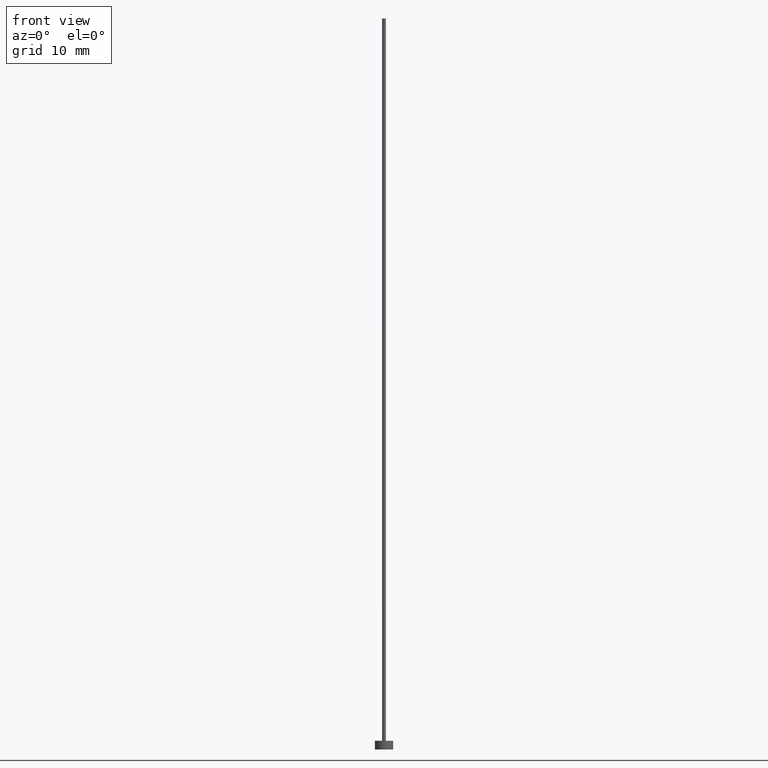
[diagram: clean part render]
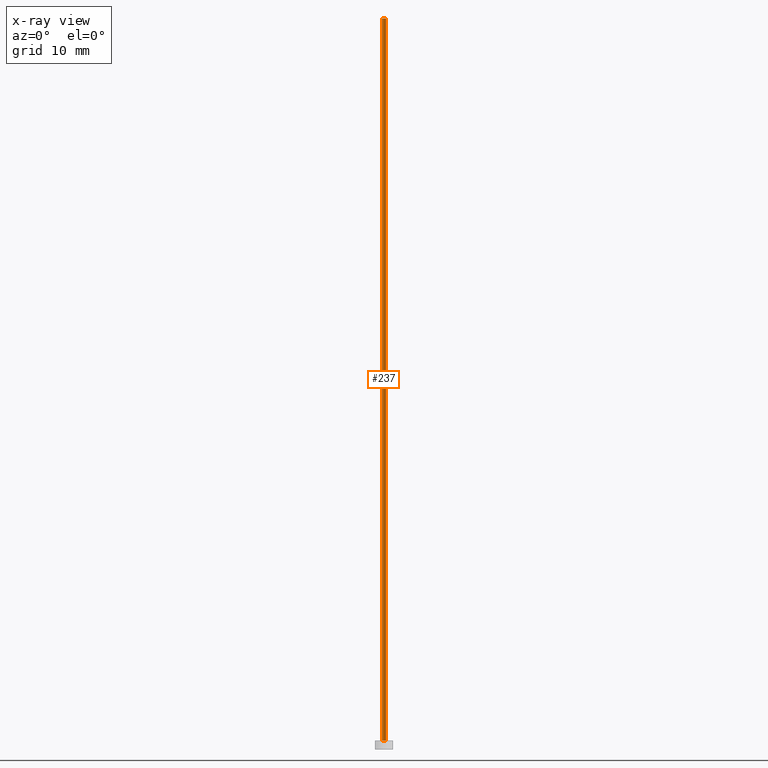
[diagram: x-ray — body ghosted, one internal face saturated and labeled with its STEP entity id]
A machine part, front view, then the same camera in x-ray: the body is ghosted and one INTERNAL B-rep face — a face not visible from any outside direction — is saturated and labeled: STEP entity #237.
In plain terms, the highlighted cylindrical surface (edge-blend (fillet) strip) has radius 0.25 mm, axis along (-0, -0, -1).
Its self-contained STEP definition (entity closure, byte-faithful):
#10 = EDGE_CURVE ( 'NONE', #40, #145, #216, .T. ) ;
#15 = DIRECTION ( 'NONE',  ( -0.000000000000000000, -0.000000000000000000, -1.000000000000000000 ) ) ;
#21 = CARTESIAN_POINT ( 'NONE',  ( 0.000000000000000000, 0.000000000000000000, 100.0000000000000000 ) ) ;
#24 = CIRCLE ( 'NONE', #86, 0.2500000000000000000 ) ;
#33 = VERTEX_POINT ( 'NONE', #68 ) ;
#36 = VERTEX_POINT ( 'NONE', #73 ) ;
#40 = VERTEX_POINT ( 'NONE', #125 ) ;
#41 = FACE_OUTER_BOUND ( 'NONE', #128, .T. ) ;
#47 = CARTESIAN_POINT ( 'NONE',  ( -0.2500000000000000000, 0.000000000000000000, 100.0000000000000000 ) ) ;
#52 = EDGE_CURVE ( 'NONE', #36, #33, #211, .T. ) ;
#68 = CARTESIAN_POINT ( 'NONE',  ( 0.2500000000000000000, 3.061616997868383018E-17, 1.199999999999999956 ) ) ;
#69 = ORIENTED_EDGE ( 'NONE', *, *, #168, .T. ) ;
#73 = CARTESIAN_POINT ( 'NONE',  ( 0.2500000000000000000, 3.061616997868383018E-17, 100.0000000000000000 ) ) ;
#74 = CARTESIAN_POINT ( 'NONE',  ( -0.2500000000000000000, 0.000000000000000000, 1.199999999999999956 ) ) ;
#86 = AXIS2_PLACEMENT_3D ( 'NONE', #21, #208, #189 ) ;
#94 = CIRCLE ( 'NONE', #219, 0.2500000000000000000 ) ;
#110 = ORIENTED_EDGE ( 'NONE', *, *, #172, .F. ) ;
#123 = VECTOR ( 'NONE', #224, 1000.000000000000000 ) ;
#125 = CARTESIAN_POINT ( 'NONE',  ( -0.2500000000000000000, 0.000000000000000000, 100.0000000000000000 ) ) ;
#128 = EDGE_LOOP ( 'NONE', ( #110, #129, #69, #250 ) ) ;
#129 = ORIENTED_EDGE ( 'NONE', *, *, #52, .T. ) ;
#145 = VERTEX_POINT ( 'NONE', #74 ) ;
#151 = DIRECTION ( 'NONE',  ( 1.000000000000000000, 0.000000000000000000, 0.000000000000000000 ) ) ;
#152 = CARTESIAN_POINT ( 'NONE',  ( 0.000000000000000000, 0.000000000000000000, 1.199999999999999956 ) ) ;
#156 = AXIS2_PLACEMENT_3D ( 'NONE', #212, #243, #196 ) ;
#168 = EDGE_CURVE ( 'NONE', #33, #145, #94, .T. ) ;
#172 = EDGE_CURVE ( 'NONE', #36, #40, #24, .T. ) ;
#177 = VECTOR ( 'NONE', #15, 1000.000000000000000 ) ;
#185 = CYLINDRICAL_SURFACE ( 'NONE', #156, 0.2500000000000000000 ) ;
#189 = DIRECTION ( 'NONE',  ( 1.000000000000000000, 0.000000000000000000, 0.000000000000000000 ) ) ;
#190 = DIRECTION ( 'NONE',  ( 0.000000000000000000, 0.000000000000000000, 1.000000000000000000 ) ) ;
#196 = DIRECTION ( 'NONE',  ( -1.000000000000000000, 0.000000000000000000, 0.000000000000000000 ) ) ;
#202 = CARTESIAN_POINT ( 'NONE',  ( 0.2500000000000000000, 3.061616997868383018E-17, 100.0000000000000000 ) ) ;
#208 = DIRECTION ( 'NONE',  ( 0.000000000000000000, 0.000000000000000000, 1.000000000000000000 ) ) ;
#211 = LINE ( 'NONE', #202, #177 ) ;
#212 = CARTESIAN_POINT ( 'NONE',  ( 0.000000000000000000, 0.000000000000000000, 100.0000000000000000 ) ) ;
#216 = LINE ( 'NONE', #47, #123 ) ;
#219 = AXIS2_PLACEMENT_3D ( 'NONE', #152, #190, #151 ) ;
#224 = DIRECTION ( 'NONE',  ( -0.000000000000000000, -0.000000000000000000, -1.000000000000000000 ) ) ;
#237 = ADVANCED_FACE ( 'NONE', ( #41 ), #185, .T. ) ;
#243 = DIRECTION ( 'NONE',  ( -0.000000000000000000, -0.000000000000000000, -1.000000000000000000 ) ) ;
#250 = ORIENTED_EDGE ( 'NONE', *, *, #10, .F. ) ;